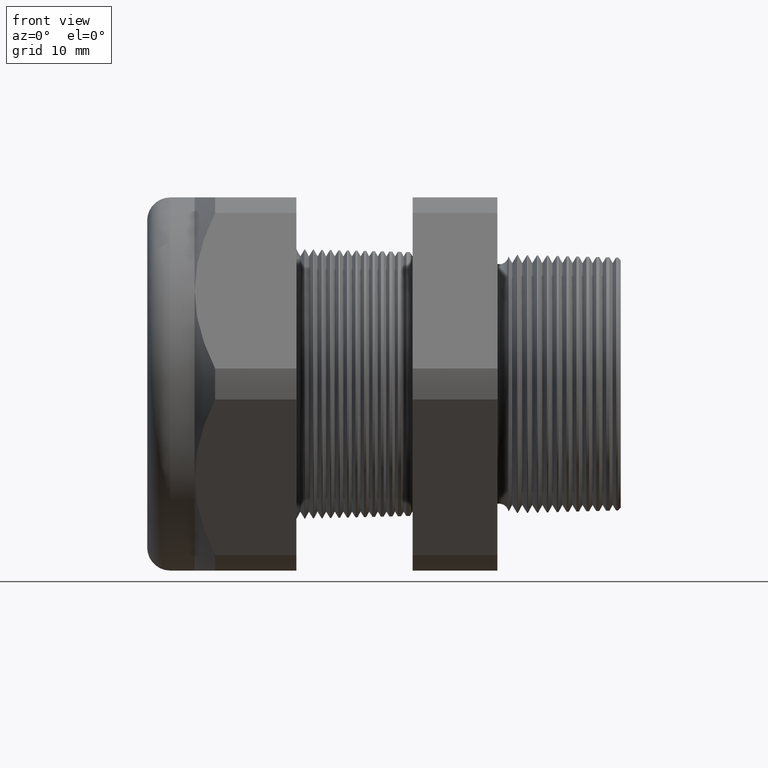
[diagram: clean part render]
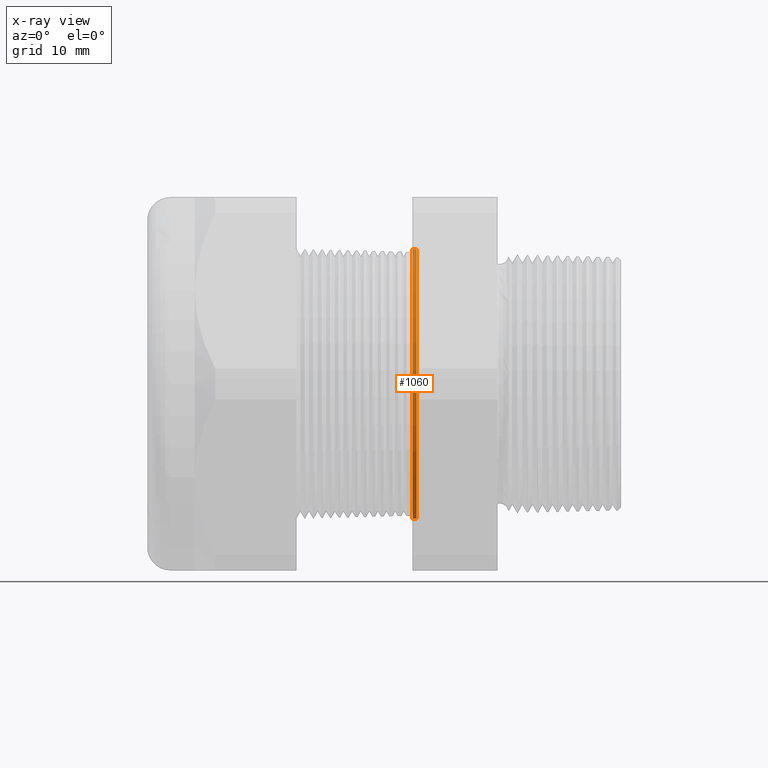
[diagram: x-ray — body ghosted, one internal face saturated and labeled with its STEP entity id]
A machine part, front view, then the same camera in x-ray: the body is ghosted and one INTERNAL B-rep face — a face not visible from any outside direction — is saturated and labeled: STEP entity #1060.
In plain terms, the highlighted conical surface has half-angle 1.5 deg.
Its self-contained STEP definition (entity closure, byte-faithful):
#1060 = ADVANCED_FACE ( 'NONE', ( #3102 ), #3103, .F. ) ;
#1061 = EDGE_LOOP ( 'NONE', ( #1062, #1066, #1069, #1072 ) ) ;
#1062 = ORIENTED_EDGE ( 'NONE', *, *, #1063, .T. ) ;
#1063 = EDGE_CURVE ( 'NONE', #1064, #1065, #3160, .T. ) ;
#1064 = VERTEX_POINT ( 'NONE', #3156 ) ;
#1065 = VERTEX_POINT ( 'NONE', #3155 ) ;
#1066 = ORIENTED_EDGE ( 'NONE', *, *, #1067, .T. ) ;
#1067 = EDGE_CURVE ( 'NONE', #1065, #1068, #3154, .T. ) ;
#1068 = VERTEX_POINT ( 'NONE', #3150 ) ;
#1069 = ORIENTED_EDGE ( 'NONE', *, *, #1070, .T. ) ;
#1070 = EDGE_CURVE ( 'NONE', #1068, #1071, #3149, .T. ) ;
#1071 = VERTEX_POINT ( 'NONE', #3144 ) ;
#1072 = ORIENTED_EDGE ( 'NONE', *, *, #1073, .F. ) ;
#1073 = EDGE_CURVE ( 'NONE', #1064, #1071, #3143, .T. ) ;
#3102 = FACE_OUTER_BOUND ( 'NONE', #1061, .T. ) ;
#3103 = CONICAL_SURFACE ( 'NONE', #3164, 0.4692443365923945100, 0.02617993877990797800 ) ;
#3140 = DIRECTION ( 'NONE',  ( -0.9996573249755573700, 0.0000000000000000000, 0.02617694830786618600 ) ) ;
#3141 = VECTOR ( 'NONE', #3140, 39.37007874015748100 ) ;
#3142 = CARTESIAN_POINT ( 'NONE',  ( -0.5914573393463203900, 0.0000000000000000000, 0.4692443365923945100 ) ) ;
#3143 = LINE ( 'NONE', #3142, #3141 ) ;
#3144 = CARTESIAN_POINT ( 'NONE',  ( -0.6052755905511809600, 0.0000000000000000000, 0.4696061802346682100 ) ) ;
#3145 = DIRECTION ( 'NONE',  ( 0.0000000000000000000, 0.0000000000000000000, 1.000000000000000000 ) ) ;
#3146 = DIRECTION ( 'NONE',  ( -1.000000000000000000, 0.0000000000000000000, 0.0000000000000000000 ) ) ;
#3147 = CARTESIAN_POINT ( 'NONE',  ( -0.6052755905511809600, 0.0000000000000000000, 0.0000000000000000000 ) ) ;
#3148 = AXIS2_PLACEMENT_3D ( 'NONE', #3147, #3146, #3145 ) ;
#3149 = CIRCLE ( 'NONE', #3148, 0.4696061802346682700 ) ;
#3150 = CARTESIAN_POINT ( 'NONE',  ( -0.6052755905511809600, 5.751017054842014700E-017, -0.4696061802346682100 ) ) ;
#3151 = DIRECTION ( 'NONE',  ( -0.9996573249755573700, 3.205751595667405400E-018, -0.02617694830786618600 ) ) ;
#3152 = VECTOR ( 'NONE', #3151, 39.37007874015748100 ) ;
#3153 = CARTESIAN_POINT ( 'NONE',  ( -0.5914573393463203900, 5.746585748258992000E-017, -0.4692443365923945100 ) ) ;
#3154 = LINE ( 'NONE', #3153, #3152 ) ;
#3155 = CARTESIAN_POINT ( 'NONE',  ( -0.5914573393463203900, 0.0000000000000000000, -0.4692443365923945100 ) ) ;
#3156 = CARTESIAN_POINT ( 'NONE',  ( -0.5914573393463203900, 5.746585748258992000E-017, 0.4692443365923945100 ) ) ;
#3157 = DIRECTION ( 'NONE',  ( 0.0000000000000000000, 0.0000000000000000000, -1.000000000000000000 ) ) ;
#3158 = DIRECTION ( 'NONE',  ( 1.000000000000000000, 0.0000000000000000000, 0.0000000000000000000 ) ) ;
#3159 = AXIS2_PLACEMENT_3D ( 'NONE', #3165, #3158, #3157 ) ;
#3160 = CIRCLE ( 'NONE', #3159, 0.4692443365923945100 ) ;
#3161 = DIRECTION ( 'NONE',  ( 0.0000000000000000000, 0.0000000000000000000, 1.000000000000000000 ) ) ;
#3162 = DIRECTION ( 'NONE',  ( -1.000000000000000000, 0.0000000000000000000, 0.0000000000000000000 ) ) ;
#3163 = CARTESIAN_POINT ( 'NONE',  ( -0.5914573393463203900, 0.0000000000000000000, 0.0000000000000000000 ) ) ;
#3164 = AXIS2_PLACEMENT_3D ( 'NONE', #3163, #3162, #3161 ) ;
#3165 = CARTESIAN_POINT ( 'NONE',  ( -0.5914573393463203900, 0.0000000000000000000, 0.0000000000000000000 ) ) ;